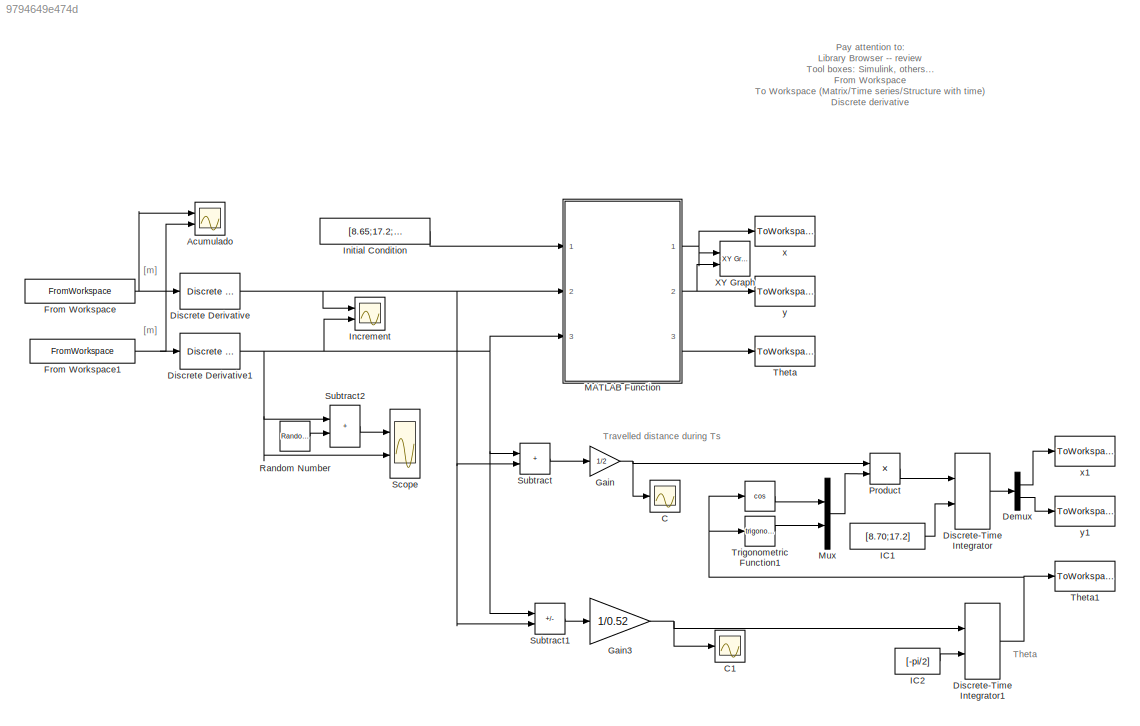
MODEL slx_9794649e474d
KIND model
CONFIG AbsTol = auto
CONFIG EnableMultiTasking = on
CONFIG FixedStep = 0.02
CONFIG InitFcn = load('Encoder_Data.mat')\n
CONFIG MaxStep = auto
CONFIG MinStep = auto
CONFIG RelTol = 1e-3
CONFIG SampleTimeConstraint = Unconstrained
CONFIG SolverName = FixedStepDiscrete
CONFIG StartTime = 0.0
CONFIG StopFcn = I = imread('Enviroment.png');\nx = [0 35.9];\ny=[23.31 0];\nimage(I,'XData',x,'YData',y);\naxis xy;\nhold on\nplot (X.Data, Y.Data,'b');\nplot (X1.Data, Y1.Data,'r');
CONFIG StopTime = 60
BLOCK [Trigonometry]  
  NameLocation = top
  Operator = cos
  Ports = [1, 1]
BLOCK [Scope] Acumulado
  Floating = off
  NumInputPorts = 2
  Ports = [2]
  ScopeSpecificationString = Simulink.scopes.TimeScopeBlockCfg('CurrentConfiguration', extmgr.ConfigurationSet(extmgr.Configuration('Core','General UI',true),extmgr.Configuration('Core','Source UI',true),extmgr.Configuration('Sources','WiredSimulink',true,'DataLoggingVariableName','ScopeData1'),extmgr.Configuration('Visuals','Time Domain',true,'SerializedDisplays',{struct('MinYLimReal','-4.03916','MaxYLimReal','36.35242','YLa...<+1425ch>
BLOCK [Scope] C
  Floating = off
  NumInputPorts = 1
  Ports = [1]
  ScopeSpecificationString = Simulink.scopes.TimeScopeBlockCfg('CurrentConfiguration', extmgr.ConfigurationSet(extmgr.Configuration('Core','General UI',true),extmgr.Configuration('Core','Source UI',true),extmgr.Configuration('Sources','WiredSimulink',true),extmgr.Configuration('Visuals','Time Domain',true,'SerializedDisplays',{struct('MinYLimReal','-0.00324','MaxYLimReal','0.02097','YLabelReal','','MinYLimMag','0.00000','MaxY...<+1324ch>
BLOCK [Scope] C1
  Floating = off
  NumInputPorts = 1
  Ports = [1]
  ScopeSpecificationString = Simulink.scopes.TimeScopeBlockCfg('CurrentConfiguration', extmgr.ConfigurationSet(extmgr.Configuration('Core','General UI',true),extmgr.Configuration('Core','Source UI',true),extmgr.Configuration('Sources','WiredSimulink',true,'DataLoggingVariableName','ScopeData2'),extmgr.Configuration('Visuals','Time Domain',true,'SerializedDisplays',{struct('MinYLimReal','-0.02028','MaxYLimReal','0.0264','YLabe...<+1391ch>
BLOCK [Demux] Demux
  Outputs = 2
  Ports = [1, 2]
BLOCK [Reference] Discrete Derivative  REF=simulink/Discrete/Discrete Derivative
  Ports = [1, 1]
  SourceBlock = simulink/Discrete/Discrete Derivative
  SourceProductBaseCode = SL
  SourceType = Discrete Derivative
BLOCK [Reference] Discrete Derivative1  REF=simulink/Discrete/Discrete Derivative
  Ports = [1, 1]
  SourceBlock = simulink/Discrete/Discrete Derivative
  SourceProductBaseCode = SL
  SourceType = Discrete Derivative
BLOCK [DiscreteIntegrator] Discrete-Time Integrator
  ICPrevOutput = DiscIntNeverNeededParam
  ICPrevScaledInput = DiscIntNeverNeededParam
  InitialConditionSetting = Auto
  InitialConditionSource = external
  Ports = [2, 1]
  SampleTime = Ts
  gainval = 1/Ts
BLOCK [DiscreteIntegrator] Discrete-Time Integrator1
  ICPrevOutput = DiscIntNeverNeededParam
  ICPrevScaledInput = DiscIntNeverNeededParam
  InitialConditionSetting = Auto
  InitialConditionSource = external
  Ports = [2, 1]
  SampleTime = Ts
  gainval = 1/Ts
BLOCK [FromWorkspace] From Workspace
  NameLocation = top
  SampleTime = Ts
  VariableName = L_acu
BLOCK [FromWorkspace] From Workspace1
  SampleTime = Ts
  VariableName = R_acu
BLOCK [Gain] Gain
  Gain = 1/2
BLOCK [Gain] Gain3
  Gain = 1/0.52
BLOCK [Constant] IC1
  Value = [8.70;17.2]
BLOCK [Constant] IC2
  Value = [-pi/2]
BLOCK [Scope] Increment
  Floating = off
  NumInputPorts = 2
  Ports = [2]
  ScopeSpecificationString = Simulink.scopes.TimeScopeBlockCfg('CurrentConfiguration', extmgr.ConfigurationSet(extmgr.Configuration('Core','General UI',true),extmgr.Configuration('Core','Source UI',true),extmgr.Configuration('Sources','WiredSimulink',true,'DataLoggingVariableName','ScopeData1'),extmgr.Configuration('Visuals','Time Domain',true,'SerializedDisplays',{struct('MinYLimReal','-0.00543','MaxYLimReal','0.02189','YLab...<+1430ch>
BLOCK [Constant] Initial Condition
  NameLocation = top
  Value = [8.65;17.2;-pi/2]
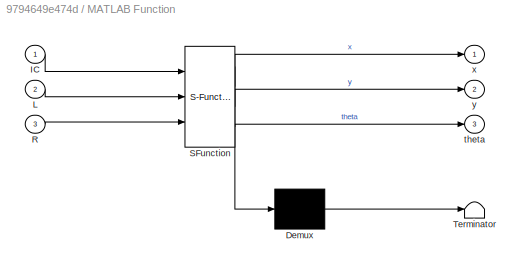
BLOCK [SubSystem] MATLAB Function
  ErrorFcn = Stateflow.Translate.translate
  PermitHierarchicalResolution = ExplicitOnly
  Ports = [3, 3]
  RequestExecContextInheritance = off
  SFBlockType = MATLAB Function
  TreatAsAtomicUnit = on
BLOCK [Demux] MATLAB Function/ Demux 
  Outputs = 1
  Ports = [1, 1]
BLOCK [S-Function] MATLAB Function/ SFunction 
  EnableBusSupport = on
  FunctionName = sf_sfun
  PortCounts = [3 4]
  Ports = [3, 4]
  SFcnIsStateOwnerBlock = off
  SFunctionDeploymentMode = off
  Tag = Stateflow S-Function 2
BLOCK [Terminator] MATLAB Function/ Terminator 
BLOCK [Inport] MATLAB Function/IC
BLOCK [Inport] MATLAB Function/L
  Port = 2
BLOCK [Inport] MATLAB Function/R
  Port = 3
BLOCK [Outport] MATLAB Function/theta
  Port = 3
BLOCK [Outport] MATLAB Function/x
BLOCK [Outport] MATLAB Function/y
  Port = 2
BLOCK [Mux] Mux
  DisplayOption = bar
  Inputs = 2
  Ports = [2, 1]
BLOCK [Product] Product
  Ports = [2, 1]
BLOCK [RandomNumber] Random Number
  SampleTime = Ts
  Variance = 0.005^2
BLOCK [Scope] Scope
  Floating = off
  NumInputPorts = 2
  Ports = [2]
  ScopeSpecificationString = Simulink.scopes.TimeScopeBlockCfg('CurrentConfiguration', extmgr.ConfigurationSet(extmgr.Configuration('Core','General UI',true),extmgr.Configuration('Core','Source UI',true),extmgr.Configuration('Sources','WiredSimulink',true,'DataLoggingVariableName','ScopeData2'),extmgr.Configuration('Visuals','Time Domain',true,'SerializedDisplays',{struct('MinYLimReal','-0.01912','MaxYLimReal','0.03629','YLab...<+1421ch>
BLOCK [Sum] Subtract
  IconShape = rectangular
  Ports = [2, 1]
BLOCK [Sum] Subtract1
  IconShape = rectangular
  Inputs = +-
  Ports = [2, 1]
BLOCK [Sum] Subtract2
  IconShape = rectangular
  Ports = [2, 1]
BLOCK [ToWorkspace] Theta
  MaxDataPoints = inf
  NameLocation = top
  Ports = [1]
  SampleTime = -1
  SaveFormat = Timeseries
  VariableName = Theta
BLOCK [ToWorkspace] Theta1
  MaxDataPoints = inf
  NameLocation = top
  Ports = [1]
  SampleTime = -1
  SaveFormat = Timeseries
  VariableName = Theta1
BLOCK [Trigonometry] Trigonometric Function1
  Ports = [1, 1]
BLOCK [Reference] XY Graph  REF=simulink/Sinks/XY Graph
  Ports = [2]
  SourceBlock = simulink/Sinks/XY Graph
  SourceProductBaseCode = SL
  SourceType = XY scope.
BLOCK [ToWorkspace] x
  MaxDataPoints = inf
  NameLocation = top
  Ports = [1]
  SampleTime = -1
  SaveFormat = Timeseries
  VariableName = X
BLOCK [ToWorkspace] x1
  MaxDataPoints = inf
  NameLocation = top
  Ports = [1]
  SampleTime = -1
  SaveFormat = Timeseries
  VariableName = X1
BLOCK [ToWorkspace] y
  MaxDataPoints = inf
  Ports = [1]
  SampleTime = -1
  SaveFormat = Timeseries
  VariableName = Y
BLOCK [ToWorkspace] y1
  MaxDataPoints = inf
  Ports = [1]
  SampleTime = -1
  SaveFormat = Timeseries
  VariableName = Y1
ANNOTATION (root): Pay attention to: Library Browser -- review Tool boxes: Simulink, others... From Workspace To Workspace (Matrix/Time series/Structure with time) Discrete derivative Discrete integral Constant Scopes Display PlotXY Mux/Demux Modelling/Model Properties Callback/ini Callback/stop Adding noise Visualization
ANNOTATION (root): Travelled distance during Ts
ANNOTATION (root): Theta
ANNOTATION (root): [m]
LINE  :1 -> Mux:1
LINE Demux:1 -> x1:1
LINE Demux:2 -> y1:1
NET Discrete Derivative1:1 -> Increment:2, MATLAB Function:3, Scope:2, Subtract1:1, Subtract2:1, Subtract:1
NET Discrete Derivative:1 -> Increment:1, MATLAB Function:2, Subtract1:2, Subtract:2
NET Discrete-Time Integrator1:1 ->  :1, Theta1:1, Trigonometric Function1:1
LINE Discrete-Time Integrator:1 -> Demux:1
NET From Workspace1:1 -> Acumulado:2, Discrete Derivative1:1
NET From Workspace:1 -> Acumulado:1, Discrete Derivative:1
NET Gain3:1 -> C1:1, Discrete-Time Integrator1:1
NET Gain:1 -> C:1, Product:1
LINE IC1:1 -> Discrete-Time Integrator:2
LINE IC2:1 -> Discrete-Time Integrator1:2
LINE Initial Condition:1 -> MATLAB Function:1
NET MATLAB Function:1 -> XY Graph:1, x:1
NET MATLAB Function:2 -> XY Graph:2, y:1
LINE MATLAB Function:3 -> Theta:1
LINE Mux:1 -> Product:2
LINE Product:1 -> Discrete-Time Integrator:1
LINE Random Number:1 -> Subtract2:2
LINE Subtract1:1 -> Gain3:1
LINE Subtract2:1 -> Scope:1
LINE Subtract:1 -> Gain:1
LINE Trigonometric Function1:1 -> Mux:2
note: NET lines group one-source signal fan-out (src -> all destinations, sorted); 1:1 wires keep LINE
CHART MATLAB Function states=1 transitions=1
  STATE_LABEL 'eML_blk_kernel()'
  STATE_LABEL 'SCRIPT:\nfunction [x,y,theta] = fcn(IC,L,R) \n% IC->Initial Condition [xo,yo,th0]\n% R and L are the incremental displacements of wheels [m]\npersistent x_w y_w suma_theta %  internal variable to be mantain its values\n\nts=0.02; % sample time\nW=0.52%2S\n\n%%%%%%%%%%%%%%%%%%%%%%%%%%%%%%%%%%%%%%%%%%%%%%%%%%%%%%%%%%%%%%%%%%%%%%%%%%\n% %%%%%%%%%%%%%%   Read Initial condition   %%%%%%%%%%%%%%%%%%%%%%%%%%%%%%\nx...<+950ch>'
CHART  states=0 transitions=0
